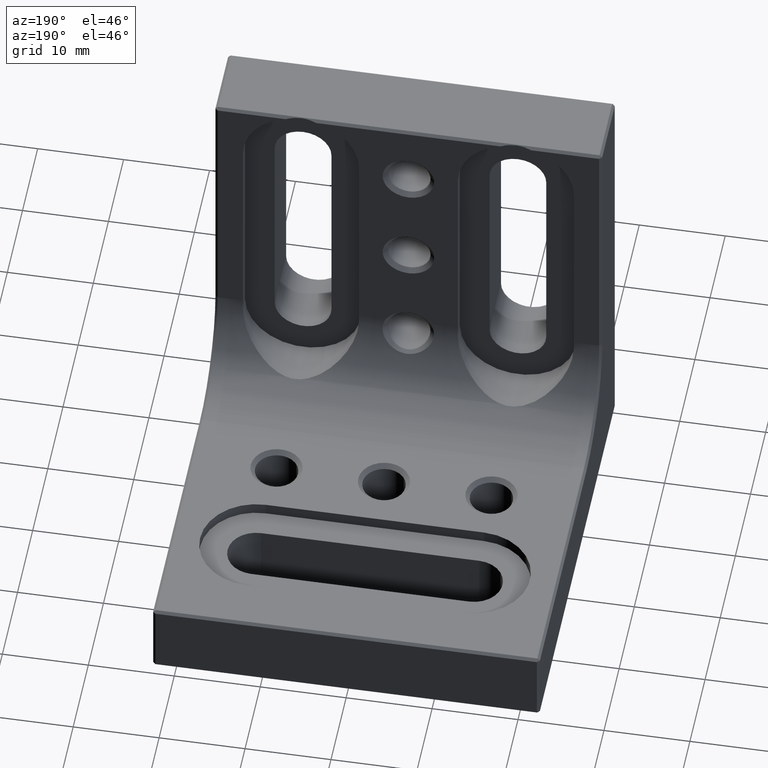
[diagram: clean part render]
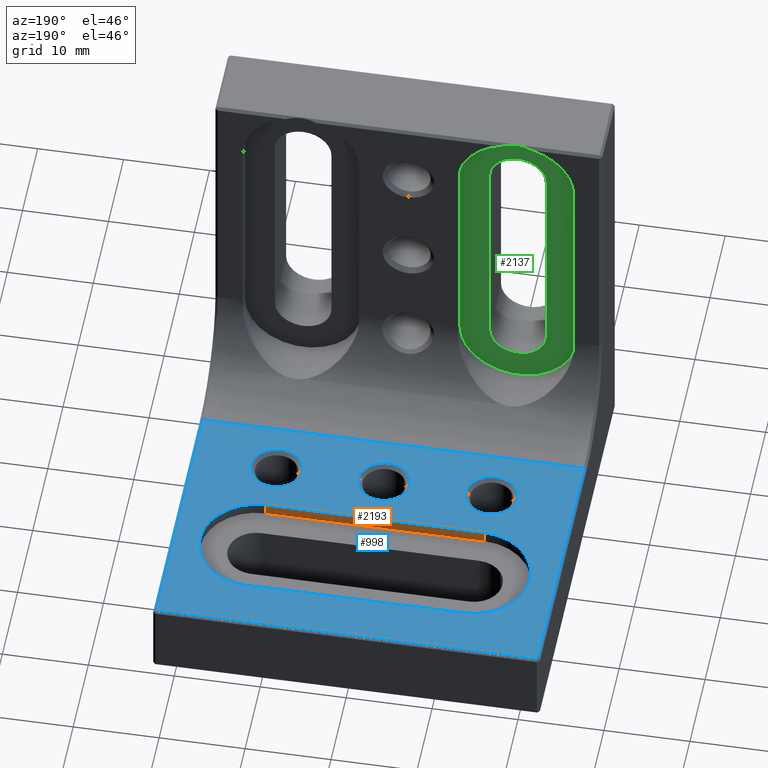
[diagram: same view with three faces highlighted in distinct colors, each labeled with its STEP entity id]
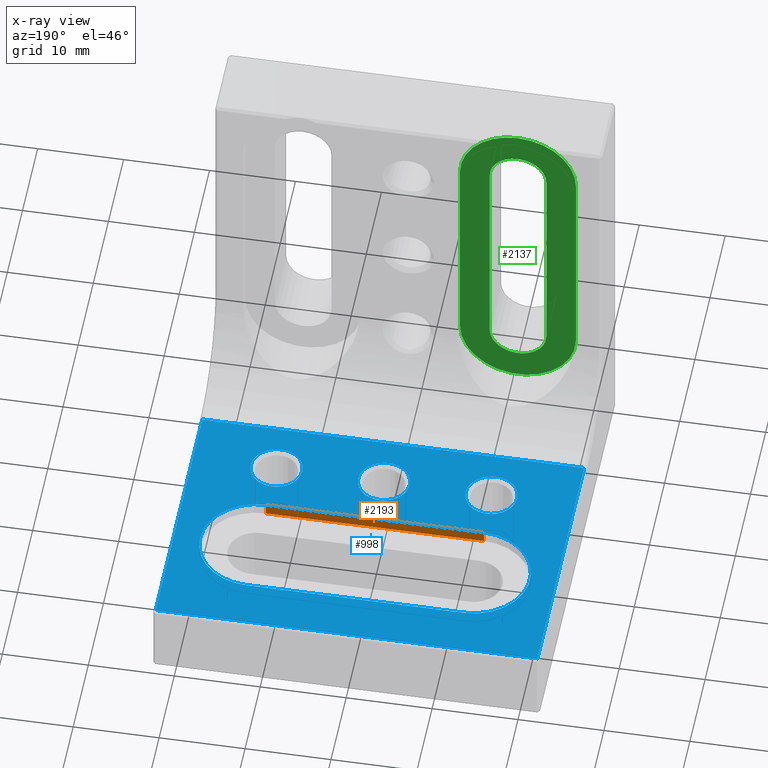
[diagram: x-ray of the same camera — body ghosted, the three highlighted faces saturated]
A machine part, auxiliary view with three faces highlighted in distinct colors.
The next image is the same camera in x-ray (body ghosted, the three faces saturated) — at least one of them is partly hidden behind the body in this view.
Their STEP definitions:

[orange] entity #2193 — the highlighted planar face has unit normal (0, -1, -0).
#152 = AXIS2_PLACEMENT_3D ( 'NONE', #727, #1599, #2750 ) ;
#189 = CARTESIAN_POINT ( 'NONE',  ( -12.69999999999999929, 31.00000000000000000, 8.899999999999998579 ) ) ;
#272 = EDGE_CURVE ( 'NONE', #2906, #562, #1121, .T. ) ;
#562 = VERTEX_POINT ( 'NONE', #3362 ) ;
#656 = ORIENTED_EDGE ( 'NONE', *, *, #2744, .T. ) ;
#680 = CARTESIAN_POINT ( 'NONE',  ( -12.69999999999999929, 31.00000000000000000, 50.00000000000000000 ) ) ;
#694 = VERTEX_POINT ( 'NONE', #3723 ) ;
#727 = CARTESIAN_POINT ( 'NONE',  ( -12.69999999999999929, 31.00000000000000000, 50.00000000000000000 ) ) ;
#734 = CARTESIAN_POINT ( 'NONE',  ( 22.50000000000000000, 31.00000000000000000, 8.899999999999998579 ) ) ;
#970 = LINE ( 'NONE', #680, #3047 ) ;
#1121 = LINE ( 'NONE', #2306, #2235 ) ;
#1149 = VERTEX_POINT ( 'NONE', #189 ) ;
#1573 = PLANE ( 'NONE',  #152 ) ;
#1582 = DIRECTION ( 'NONE',  ( -1.000000000000000000, 0.000000000000000000, 0.000000000000000000 ) ) ;
#1599 = DIRECTION ( 'NONE',  ( 0.000000000000000000, -1.000000000000000000, -0.000000000000000000 ) ) ;
#1870 = CARTESIAN_POINT ( 'NONE',  ( 12.69999999999999929, 31.00000000000000000, 50.00000000000000000 ) ) ;
#2110 = EDGE_LOOP ( 'NONE', ( #656, #3468, #2727, #3822 ) ) ;
#2193 = ADVANCED_FACE ( 'NONE', ( #3665 ), #1573, .F. ) ;
#2235 = VECTOR ( 'NONE', #2540, 1000.000000000000000 ) ;
#2306 = CARTESIAN_POINT ( 'NONE',  ( -12.69999999999999929, 31.00000000000000000, 7.500000000000000000 ) ) ;
#2450 = VECTOR ( 'NONE', #1582, 1000.000000000000000 ) ;
#2484 = LINE ( 'NONE', #1870, #3418 ) ;
#2540 = DIRECTION ( 'NONE',  ( 1.000000000000000000, -0.000000000000000000, -0.000000000000000000 ) ) ;
#2720 = LINE ( 'NONE', #734, #2450 ) ;
#2727 = ORIENTED_EDGE ( 'NONE', *, *, #2765, .T. ) ;
#2744 = EDGE_CURVE ( 'NONE', #694, #562, #2484, .T. ) ;
#2750 = DIRECTION ( 'NONE',  ( 0.000000000000000000, 0.000000000000000000, -1.000000000000000000 ) ) ;
#2765 = EDGE_CURVE ( 'NONE', #2906, #1149, #970, .T. ) ;
#2906 = VERTEX_POINT ( 'NONE', #3260 ) ;
#3047 = VECTOR ( 'NONE', #3346, 1000.000000000000000 ) ;
#3260 = CARTESIAN_POINT ( 'NONE',  ( -12.69999999999999929, 31.00000000000000000, 7.500000000000000000 ) ) ;
#3346 = DIRECTION ( 'NONE',  ( -0.000000000000000000, -0.000000000000000000, 1.000000000000000000 ) ) ;
#3362 = CARTESIAN_POINT ( 'NONE',  ( 12.69999999999999929, 31.00000000000000000, 7.500000000000000000 ) ) ;
#3418 = VECTOR ( 'NONE', #3621, 1000.000000000000000 ) ;
#3468 = ORIENTED_EDGE ( 'NONE', *, *, #272, .F. ) ;
#3621 = DIRECTION ( 'NONE',  ( 0.000000000000000000, 0.000000000000000000, -1.000000000000000000 ) ) ;
#3665 = FACE_OUTER_BOUND ( 'NONE', #2110, .T. ) ;
#3720 = EDGE_CURVE ( 'NONE', #694, #1149, #2720, .T. ) ;
#3723 = CARTESIAN_POINT ( 'NONE',  ( 12.69999999999999929, 31.00000000000000000, 8.899999999999998579 ) ) ;
#3822 = ORIENTED_EDGE ( 'NONE', *, *, #3720, .F. ) ;

[blue] entity #998 — the highlighted planar face has unit normal (0, 0, -1).
#59 = DIRECTION ( 'NONE',  ( 0.000000000000000000, 1.266221515311538050E-16, -1.000000000000000000 ) ) ;
#80 = FACE_OUTER_BOUND ( 'NONE', #2706, .T. ) ;
#84 = DIRECTION ( 'NONE',  ( 0.000000000000000000, 1.266221515311538050E-16, -1.000000000000000000 ) ) ;
#88 = CARTESIAN_POINT ( 'NONE',  ( 22.50000000000000000, 49.70000000000000995, 8.900000000000000355 ) ) ;
#120 = CARTESIAN_POINT ( 'NONE',  ( 12.50000000000000000, 24.99999999999999289, 8.899999999999996803 ) ) ;
#144 = CARTESIAN_POINT ( 'NONE',  ( -12.50000000000000000, 24.99999999999999289, 8.899999999999996803 ) ) ;
#189 = CARTESIAN_POINT ( 'NONE',  ( -12.69999999999999929, 31.00000000000000000, 8.899999999999998579 ) ) ;
#201 = CARTESIAN_POINT ( 'NONE',  ( -12.69999999999999929, 43.99999999999998579, 8.899999999999998579 ) ) ;
#215 = CIRCLE ( 'NONE', #2433, 6.499999999999992006 ) ;
#248 = VERTEX_POINT ( 'NONE', #538 ) ;
#251 = CARTESIAN_POINT ( 'NONE',  ( 22.50000000000000000, 18.89999999999999503, 8.900000000000000355 ) ) ;
#261 = AXIS2_PLACEMENT_3D ( 'NONE', #2290, #1414, #1975 ) ;
#286 = ORIENTED_EDGE ( 'NONE', *, *, #3720, .T. ) ;
#287 = ORIENTED_EDGE ( 'NONE', *, *, #3790, .T. ) ;
#302 = EDGE_CURVE ( 'NONE', #2902, #1813, #2045, .T. ) ;
#325 = ORIENTED_EDGE ( 'NONE', *, *, #2403, .T. ) ;
#331 = CARTESIAN_POINT ( 'NONE',  ( -22.20000000000000284, 50.00000000000000000, 8.900000000000000355 ) ) ;
#336 = LINE ( 'NONE', #3636, #484 ) ;
#346 = CARTESIAN_POINT ( 'NONE',  ( 22.50000000000000000, 50.00000000000000000, 8.900000000000000355 ) ) ;
#348 = EDGE_CURVE ( 'NONE', #1813, #2902, #2918, .T. ) ;
#364 = ORIENTED_EDGE ( 'NONE', *, *, #2921, .T. ) ;
#392 = CARTESIAN_POINT ( 'NONE',  ( 12.69999999999999929, 43.99999999999998579, 8.900000000000000355 ) ) ;
#394 = CARTESIAN_POINT ( 'NONE',  ( -12.50000000000000000, 24.99999999999999289, 8.899999999999996803 ) ) ;
#406 = CARTESIAN_POINT ( 'NONE',  ( -9.499999999999987566, 24.99999999999999289, 8.899999999999996803 ) ) ;
#484 = VECTOR ( 'NONE', #714, 1000.000000000000000 ) ;
#538 = CARTESIAN_POINT ( 'NONE',  ( -15.50000000000001421, 24.99999999999999289, 8.899999999999996803 ) ) ;
#549 = EDGE_CURVE ( 'NONE', #1626, #248, #3094, .T. ) ;
#611 = CARTESIAN_POINT ( 'NONE',  ( -2.999999999999995559, 24.99999999999999289, 8.899999999999996803 ) ) ;
#623 = EDGE_CURVE ( 'NONE', #3128, #1727, #1191, .T. ) ;
#638 = AXIS2_PLACEMENT_3D ( 'NONE', #3465, #2619, #1195 ) ;
#670 = EDGE_CURVE ( 'NONE', #2842, #1824, #1659, .T. ) ;
#694 = VERTEX_POINT ( 'NONE', #3723 ) ;
#714 = DIRECTION ( 'NONE',  ( 0.000000000000000000, 1.000000000000000000, 1.266221515311538050E-16 ) ) ;
#734 = CARTESIAN_POINT ( 'NONE',  ( 22.50000000000000000, 31.00000000000000000, 8.899999999999998579 ) ) ;
#752 = CARTESIAN_POINT ( 'NONE',  ( 22.20000000000000284, 18.89999999999999503, 8.900000000000000355 ) ) ;
#781 = AXIS2_PLACEMENT_3D ( 'NONE', #1207, #2337, #873 ) ;
#873 = DIRECTION ( 'NONE',  ( 0.000000000000000000, 1.000000000000000000, 0.000000000000000000 ) ) ;
#899 = CARTESIAN_POINT ( 'NONE',  ( 22.20000000000000284, 49.70000000000000995, 8.900000000000000355 ) ) ;
#909 = VECTOR ( 'NONE', #924, 1000.000000000000000 ) ;
#924 = DIRECTION ( 'NONE',  ( 0.000000000000000000, -1.000000000000000000, -1.266221515311538050E-16 ) ) ;
#949 = DIRECTION ( 'NONE',  ( -1.000000000000000000, 0.000000000000000000, 0.000000000000000000 ) ) ;
#958 = DIRECTION ( 'NONE',  ( 0.000000000000000000, 1.000000000000000000, 1.266221515311538050E-16 ) ) ;
#961 = ORIENTED_EDGE ( 'NONE', *, *, #623, .T. ) ;
#998 = ADVANCED_FACE ( 'NONE', ( #2728, #1535, #2748, #3663, #80 ), #1898, .F. ) ;
#1044 = DIRECTION ( 'NONE',  ( 0.000000000000000000, 1.000000000000000000, 0.000000000000000000 ) ) ;
#1081 = CARTESIAN_POINT ( 'NONE',  ( 12.50000000000000000, 24.99999999999999289, 8.899999999999996803 ) ) ;
#1099 = AXIS2_PLACEMENT_3D ( 'NONE', #144, #1341, #2213 ) ;
#1149 = VERTEX_POINT ( 'NONE', #189 ) ;
#1191 = CIRCLE ( 'NONE', #3702, 3.000000000000012879 ) ;
#1195 = DIRECTION ( 'NONE',  ( 0.000000000000000000, 1.000000000000000000, 0.000000000000000000 ) ) ;
#1203 = EDGE_LOOP ( 'NONE', ( #1786, #1530 ) ) ;
#1207 = CARTESIAN_POINT ( 'NONE',  ( 12.69999999999999929, 37.49999999999999289, 8.899999999999998579 ) ) ;
#1213 = DIRECTION ( 'NONE',  ( 0.000000000000000000, 1.266221515311538050E-16, -1.000000000000000000 ) ) ;
#1239 = ORIENTED_EDGE ( 'NONE', *, *, #670, .T. ) ;
#1272 = DIRECTION ( 'NONE',  ( 0.000000000000000000, 1.266221515311538050E-16, -1.000000000000000000 ) ) ;
#1341 = DIRECTION ( 'NONE',  ( 0.000000000000000000, 1.266221515311538050E-16, -1.000000000000000000 ) ) ;
#1414 = DIRECTION ( 'NONE',  ( 0.000000000000000000, 1.266221515311538050E-16, -1.000000000000000000 ) ) ;
#1446 = CARTESIAN_POINT ( 'NONE',  ( 19.19999999999999574, 37.49999999999999289, 8.899999999999998579 ) ) ;
#1484 = CARTESIAN_POINT ( 'NONE',  ( 22.50000000000000000, 43.99999999999998579, 8.900000000000000355 ) ) ;
#1524 = DIRECTION ( 'NONE',  ( 0.000000000000000000, 1.000000000000000000, 0.000000000000000000 ) ) ;
#1530 = ORIENTED_EDGE ( 'NONE', *, *, #3021, .T. ) ;
#1535 = FACE_BOUND ( 'NONE', #3812, .T. ) ;
#1571 = VERTEX_POINT ( 'NONE', #1854 ) ;
#1582 = DIRECTION ( 'NONE',  ( -1.000000000000000000, 0.000000000000000000, 0.000000000000000000 ) ) ;
#1597 = AXIS2_PLACEMENT_3D ( 'NONE', #3342, #84, #1524 ) ;
#1626 = VERTEX_POINT ( 'NONE', #406 ) ;
#1659 = LINE ( 'NONE', #251, #1924 ) ;
#1685 = CARTESIAN_POINT ( 'NONE',  ( 2.999999999999995559, 24.99999999999999289, 8.899999999999996803 ) ) ;
#1727 = VERTEX_POINT ( 'NONE', #2196 ) ;
#1786 = ORIENTED_EDGE ( 'NONE', *, *, #549, .T. ) ;
#1800 = ORIENTED_EDGE ( 'NONE', *, *, #3765, .T. ) ;
#1805 = AXIS2_PLACEMENT_3D ( 'NONE', #346, #59, #958 ) ;
#1813 = VERTEX_POINT ( 'NONE', #1685 ) ;
#1824 = VERTEX_POINT ( 'NONE', #752 ) ;
#1847 = VERTEX_POINT ( 'NONE', #899 ) ;
#1854 = CARTESIAN_POINT ( 'NONE',  ( -22.20000000000000284, 49.70000000000000995, 8.900000000000000355 ) ) ;
#1874 = ORIENTED_EDGE ( 'NONE', *, *, #2000, .T. ) ;
#1898 = PLANE ( 'NONE',  #1805 ) ;
#1924 = VECTOR ( 'NONE', #3404, 1000.000000000000000 ) ;
#1927 = ORIENTED_EDGE ( 'NONE', *, *, #302, .T. ) ;
#1975 = DIRECTION ( 'NONE',  ( 0.000000000000000000, 1.000000000000000000, 0.000000000000000000 ) ) ;
#1980 = AXIS2_PLACEMENT_3D ( 'NONE', #394, #1272, #2476 ) ;
#1984 = VERTEX_POINT ( 'NONE', #1446 ) ;
#2000 = EDGE_CURVE ( 'NONE', #1727, #3128, #3782, .T. ) ;
#2001 = CIRCLE ( 'NONE', #781, 6.499999999999992006 ) ;
#2045 = CIRCLE ( 'NONE', #261, 2.999999999999995559 ) ;
#2067 = EDGE_CURVE ( 'NONE', #1149, #2825, #215, .T. ) ;
#2174 = VERTEX_POINT ( 'NONE', #392 ) ;
#2196 = CARTESIAN_POINT ( 'NONE',  ( 15.50000000000001421, 24.99999999999999289, 8.899999999999996803 ) ) ;
#2213 = DIRECTION ( 'NONE',  ( 0.000000000000000000, 1.000000000000000000, 0.000000000000000000 ) ) ;
#2265 = ORIENTED_EDGE ( 'NONE', *, *, #348, .T. ) ;
#2287 = DIRECTION ( 'NONE',  ( 0.000000000000000000, 1.266221515311538050E-16, -1.000000000000000000 ) ) ;
#2290 = CARTESIAN_POINT ( 'NONE',  ( 0.000000000000000000, 24.99999999999999289, 8.899999999999996803 ) ) ;
#2307 = CARTESIAN_POINT ( 'NONE',  ( -22.20000000000000284, 18.89999999999999503, 8.900000000000000355 ) ) ;
#2337 = DIRECTION ( 'NONE',  ( 0.000000000000000000, 1.266221515311538050E-16, -1.000000000000000000 ) ) ;
#2358 = DIRECTION ( 'NONE',  ( 0.000000000000000000, 1.000000000000000000, 0.000000000000000000 ) ) ;
#2383 = LINE ( 'NONE', #1484, #3234 ) ;
#2385 = ORIENTED_EDGE ( 'NONE', *, *, #3446, .T. ) ;
#2403 = EDGE_CURVE ( 'NONE', #1984, #694, #2001, .T. ) ;
#2422 = LINE ( 'NONE', #88, #3495 ) ;
#2433 = AXIS2_PLACEMENT_3D ( 'NONE', #2669, #1213, #2358 ) ;
#2450 = VECTOR ( 'NONE', #1582, 1000.000000000000000 ) ;
#2476 = DIRECTION ( 'NONE',  ( 0.000000000000000000, 1.000000000000000000, 0.000000000000000000 ) ) ;
#2535 = ORIENTED_EDGE ( 'NONE', *, *, #2067, .T. ) ;
#2619 = DIRECTION ( 'NONE',  ( 0.000000000000000000, 1.266221515311538050E-16, -1.000000000000000000 ) ) ;
#2630 = CIRCLE ( 'NONE', #1099, 3.000000000000012879 ) ;
#2651 = EDGE_LOOP ( 'NONE', ( #1874, #961 ) ) ;
#2669 = CARTESIAN_POINT ( 'NONE',  ( -12.69999999999999929, 37.49999999999999289, 8.899999999999998579 ) ) ;
#2700 = CIRCLE ( 'NONE', #1597, 6.499999999999992006 ) ;
#2706 = EDGE_LOOP ( 'NONE', ( #287, #2757, #1239, #1800 ) ) ;
#2720 = LINE ( 'NONE', #734, #2450 ) ;
#2728 = FACE_BOUND ( 'NONE', #2651, .T. ) ;
#2748 = FACE_BOUND ( 'NONE', #1203, .T. ) ;
#2757 = ORIENTED_EDGE ( 'NONE', *, *, #2908, .T. ) ;
#2825 = VERTEX_POINT ( 'NONE', #201 ) ;
#2842 = VERTEX_POINT ( 'NONE', #2307 ) ;
#2902 = VERTEX_POINT ( 'NONE', #611 ) ;
#2908 = EDGE_CURVE ( 'NONE', #1571, #2842, #2979, .T. ) ;
#2918 = CIRCLE ( 'NONE', #638, 2.999999999999995559 ) ;
#2921 = EDGE_CURVE ( 'NONE', #2825, #2174, #2383, .T. ) ;
#2979 = LINE ( 'NONE', #331, #909 ) ;
#3021 = EDGE_CURVE ( 'NONE', #248, #1626, #2630, .T. ) ;
#3094 = CIRCLE ( 'NONE', #1980, 3.000000000000012879 ) ;
#3128 = VERTEX_POINT ( 'NONE', #3419 ) ;
#3134 = DIRECTION ( 'NONE',  ( 0.000000000000000000, 1.000000000000000000, 0.000000000000000000 ) ) ;
#3234 = VECTOR ( 'NONE', #3789, 1000.000000000000000 ) ;
#3342 = CARTESIAN_POINT ( 'NONE',  ( 12.69999999999999929, 37.49999999999999289, 8.899999999999998579 ) ) ;
#3404 = DIRECTION ( 'NONE',  ( 1.000000000000000000, -0.000000000000000000, -0.000000000000000000 ) ) ;
#3419 = CARTESIAN_POINT ( 'NONE',  ( 9.499999999999987566, 24.99999999999999289, 8.899999999999996803 ) ) ;
#3446 = EDGE_CURVE ( 'NONE', #2174, #1984, #2700, .T. ) ;
#3465 = CARTESIAN_POINT ( 'NONE',  ( 0.000000000000000000, 24.99999999999999289, 8.899999999999996803 ) ) ;
#3495 = VECTOR ( 'NONE', #949, 1000.000000000000000 ) ;
#3541 = AXIS2_PLACEMENT_3D ( 'NONE', #1081, #2287, #3134 ) ;
#3636 = CARTESIAN_POINT ( 'NONE',  ( 22.20000000000000284, 50.00000000000000000, 8.900000000000000355 ) ) ;
#3663 = FACE_BOUND ( 'NONE', #3795, .T. ) ;
#3668 = DIRECTION ( 'NONE',  ( 0.000000000000000000, 1.266221515311538050E-16, -1.000000000000000000 ) ) ;
#3702 = AXIS2_PLACEMENT_3D ( 'NONE', #120, #3668, #1044 ) ;
#3720 = EDGE_CURVE ( 'NONE', #694, #1149, #2720, .T. ) ;
#3723 = CARTESIAN_POINT ( 'NONE',  ( 12.69999999999999929, 31.00000000000000000, 8.899999999999998579 ) ) ;
#3765 = EDGE_CURVE ( 'NONE', #1824, #1847, #336, .T. ) ;
#3782 = CIRCLE ( 'NONE', #3541, 3.000000000000012879 ) ;
#3789 = DIRECTION ( 'NONE',  ( 1.000000000000000000, -0.000000000000000000, 0.000000000000000000 ) ) ;
#3790 = EDGE_CURVE ( 'NONE', #1847, #1571, #2422, .T. ) ;
#3795 = EDGE_LOOP ( 'NONE', ( #286, #2535, #364, #2385, #325 ) ) ;
#3812 = EDGE_LOOP ( 'NONE', ( #2265, #1927 ) ) ;

[green] entity #2137 — the highlighted planar face has unit normal (-0, 1, 0).
#4 = DIRECTION ( 'NONE',  ( 0.000000000000000000, -1.000000000000000000, -1.224646799147353454E-16 ) ) ;
#43 = EDGE_CURVE ( 'NONE', #3661, #3434, #833, .T. ) ;
#67 = EDGE_CURVE ( 'NONE', #3598, #644, #398, .T. ) ;
#163 = DIRECTION ( 'NONE',  ( 0.000000000000000000, 1.224646799147353454E-16, -1.000000000000000000 ) ) ;
#177 = DIRECTION ( 'NONE',  ( 0.000000000000000000, -1.000000000000000000, -1.224646799147353454E-16 ) ) ;
#208 = VERTEX_POINT ( 'NONE', #481 ) ;
#301 = ORIENTED_EDGE ( 'NONE', *, *, #67, .F. ) ;
#330 = AXIS2_PLACEMENT_3D ( 'NONE', #689, #1879, #3336 ) ;
#398 = LINE ( 'NONE', #3059, #1808 ) ;
#410 = CIRCLE ( 'NONE', #659, 3.300000000000000711 ) ;
#469 = VERTEX_POINT ( 'NONE', #2958 ) ;
#472 = CARTESIAN_POINT ( 'NONE',  ( -12.49999999999999645, 7.500000000000000000, 17.78999999999999915 ) ) ;
#480 = EDGE_CURVE ( 'NONE', #1589, #208, #2978, .T. ) ;
#481 = CARTESIAN_POINT ( 'NONE',  ( -15.79999999999999893, 7.499999999999996447, 17.78999999999999915 ) ) ;
#501 = ORIENTED_EDGE ( 'NONE', *, *, #480, .T. ) ;
#564 = LINE ( 'NONE', #1763, #3610 ) ;
#621 = ORIENTED_EDGE ( 'NONE', *, *, #3180, .T. ) ;
#625 = ORIENTED_EDGE ( 'NONE', *, *, #1431, .F. ) ;
#644 = VERTEX_POINT ( 'NONE', #2890 ) ;
#659 = AXIS2_PLACEMENT_3D ( 'NONE', #2802, #1350, #1383 ) ;
#689 = CARTESIAN_POINT ( 'NONE',  ( 22.50000000000000000, 7.499999999999999112, 9.184850993605147944E-16 ) ) ;
#808 = CARTESIAN_POINT ( 'NONE',  ( -12.49999999999999645, 7.499999999999992895, 43.18999999999999773 ) ) ;
#833 = LINE ( 'NONE', #1006, #2792 ) ;
#883 = CARTESIAN_POINT ( 'NONE',  ( -12.49999999999999645, 7.499999999999992006, 49.93999999999999773 ) ) ;
#888 = CARTESIAN_POINT ( 'NONE',  ( -19.24999999999999645, 7.499999999999985789, 43.18999999999999773 ) ) ;
#940 = DIRECTION ( 'NONE',  ( 0.000000000000000000, -1.284980352575412946E-16, 1.000000000000000000 ) ) ;
#955 = CARTESIAN_POINT ( 'NONE',  ( -15.80000000000000071, 7.499999999999994671, 43.19000000000000483 ) ) ;
#974 = VERTEX_POINT ( 'NONE', #3074 ) ;
#1006 = CARTESIAN_POINT ( 'NONE',  ( -9.199999999999995737, 7.499999999999996447, 17.78999999999999915 ) ) ;
#1095 = DIRECTION ( 'NONE',  ( 0.000000000000000000, -1.284980352575412946E-16, 1.000000000000000000 ) ) ;
#1185 = EDGE_CURVE ( 'NONE', #644, #3758, #1825, .T. ) ;
#1238 = EDGE_CURVE ( 'NONE', #208, #3661, #410, .T. ) ;
#1350 = DIRECTION ( 'NONE',  ( 0.000000000000000000, -1.000000000000000000, -1.224646799147353454E-16 ) ) ;
#1383 = DIRECTION ( 'NONE',  ( 0.000000000000000000, 0.000000000000000000, 1.000000000000000000 ) ) ;
#1431 = EDGE_CURVE ( 'NONE', #3758, #469, #564, .T. ) ;
#1453 = CARTESIAN_POINT ( 'NONE',  ( -12.49999999999999645, 7.499999999999993783, 43.18999999999999773 ) ) ;
#1522 = CARTESIAN_POINT ( 'NONE',  ( -15.79999999999999893, 7.499999999999996447, 17.78999999999999915 ) ) ;
#1525 = DIRECTION ( 'NONE',  ( 0.000000000000000000, 0.000000000000000000, 1.000000000000000000 ) ) ;
#1589 = VERTEX_POINT ( 'NONE', #955 ) ;
#1763 = CARTESIAN_POINT ( 'NONE',  ( -5.749999999999998224, 7.500000000000000000, 17.79000000000000625 ) ) ;
#1808 = VECTOR ( 'NONE', #163, 1000.000000000000000 ) ;
#1825 = CIRCLE ( 'NONE', #2877, 6.749999999999999112 ) ;
#1879 = DIRECTION ( 'NONE',  ( -0.000000000000000000, 1.000000000000000000, 1.224646799147353454E-16 ) ) ;
#1908 = ORIENTED_EDGE ( 'NONE', *, *, #2049, .F. ) ;
#1942 = CIRCLE ( 'NONE', #2116, 6.749999999999999112 ) ;
#1998 = AXIS2_PLACEMENT_3D ( 'NONE', #2639, #4, #1525 ) ;
#2021 = EDGE_CURVE ( 'NONE', #469, #2927, #1942, .T. ) ;
#2046 = CARTESIAN_POINT ( 'NONE',  ( -12.49999999999999645, 7.499999999999992895, 43.18999999999999773 ) ) ;
#2049 = EDGE_CURVE ( 'NONE', #2927, #3598, #2679, .T. ) ;
#2054 = CARTESIAN_POINT ( 'NONE',  ( -9.199999999999995737, 7.499999999999996447, 17.78999999999999915 ) ) ;
#2081 = DIRECTION ( 'NONE',  ( 0.000000000000000000, -1.000000000000000000, -1.224646799147353454E-16 ) ) ;
#2116 = AXIS2_PLACEMENT_3D ( 'NONE', #808, #177, #3746 ) ;
#2137 = ADVANCED_FACE ( 'NONE', ( #2181, #2491 ), #3032, .T. ) ;
#2169 = DIRECTION ( 'NONE',  ( 4.097771990496395321E-16, -1.224646799147353454E-16, 1.000000000000000000 ) ) ;
#2181 = FACE_OUTER_BOUND ( 'NONE', #2564, .T. ) ;
#2332 = DIRECTION ( 'NONE',  ( 0.000000000000000000, -1.000000000000000000, -1.224646799147353454E-16 ) ) ;
#2432 = ORIENTED_EDGE ( 'NONE', *, *, #43, .T. ) ;
#2491 = FACE_BOUND ( 'NONE', #2714, .T. ) ;
#2493 = CIRCLE ( 'NONE', #1998, 3.300000000000004263 ) ;
#2564 = EDGE_LOOP ( 'NONE', ( #2688, #301, #1908, #3203, #625 ) ) ;
#2639 = CARTESIAN_POINT ( 'NONE',  ( -12.49999999999999645, 7.499999999999993783, 43.18999999999999773 ) ) ;
#2658 = DIRECTION ( 'NONE',  ( 0.000000000000000000, 0.000000000000000000, 1.000000000000000000 ) ) ;
#2679 = CIRCLE ( 'NONE', #3351, 6.749999999999999112 ) ;
#2688 = ORIENTED_EDGE ( 'NONE', *, *, #1185, .F. ) ;
#2695 = DIRECTION ( 'NONE',  ( -1.365923996832131116E-16, 1.224646799147353454E-16, -1.000000000000000000 ) ) ;
#2714 = EDGE_LOOP ( 'NONE', ( #2432, #3339, #621, #501, #2723 ) ) ;
#2723 = ORIENTED_EDGE ( 'NONE', *, *, #1238, .T. ) ;
#2792 = VECTOR ( 'NONE', #2169, 1000.000000000000000 ) ;
#2802 = CARTESIAN_POINT ( 'NONE',  ( -12.49999999999999645, 7.499999999999996447, 17.78999999999999915 ) ) ;
#2877 = AXIS2_PLACEMENT_3D ( 'NONE', #472, #3718, #1095 ) ;
#2890 = CARTESIAN_POINT ( 'NONE',  ( -19.24999999999999645, 7.500000000000000000, 17.78999999999999915 ) ) ;
#2927 = VERTEX_POINT ( 'NONE', #883 ) ;
#2958 = CARTESIAN_POINT ( 'NONE',  ( -5.749999999999998224, 7.499999999999992895, 43.18999999999999773 ) ) ;
#2968 = DIRECTION ( 'NONE',  ( 0.000000000000000000, -1.224646799147353454E-16, 1.000000000000000000 ) ) ;
#2978 = LINE ( 'NONE', #1522, #3151 ) ;
#3032 = PLANE ( 'NONE',  #330 ) ;
#3059 = CARTESIAN_POINT ( 'NONE',  ( -19.24999999999999645, 7.500000000000000000, 17.79000000000000625 ) ) ;
#3074 = CARTESIAN_POINT ( 'NONE',  ( -12.49999999999999645, 7.499999999999993783, 46.49000000000000199 ) ) ;
#3151 = VECTOR ( 'NONE', #2695, 1000.000000000000000 ) ;
#3180 = EDGE_CURVE ( 'NONE', #974, #1589, #2493, .T. ) ;
#3203 = ORIENTED_EDGE ( 'NONE', *, *, #2021, .F. ) ;
#3239 = CIRCLE ( 'NONE', #3305, 3.300000000000004263 ) ;
#3305 = AXIS2_PLACEMENT_3D ( 'NONE', #1453, #2332, #2658 ) ;
#3308 = CARTESIAN_POINT ( 'NONE',  ( -5.749999999999998224, 7.500000000000000000, 17.78999999999999915 ) ) ;
#3336 = DIRECTION ( 'NONE',  ( 0.000000000000000000, -1.224646799147353454E-16, 1.000000000000000000 ) ) ;
#3339 = ORIENTED_EDGE ( 'NONE', *, *, #3577, .T. ) ;
#3351 = AXIS2_PLACEMENT_3D ( 'NONE', #2046, #2081, #940 ) ;
#3434 = VERTEX_POINT ( 'NONE', #3597 ) ;
#3577 = EDGE_CURVE ( 'NONE', #3434, #974, #3239, .T. ) ;
#3597 = CARTESIAN_POINT ( 'NONE',  ( -9.199999999999992184, 7.499999999999993783, 43.18999999999999773 ) ) ;
#3598 = VERTEX_POINT ( 'NONE', #888 ) ;
#3610 = VECTOR ( 'NONE', #2968, 1000.000000000000000 ) ;
#3661 = VERTEX_POINT ( 'NONE', #2054 ) ;
#3718 = DIRECTION ( 'NONE',  ( 0.000000000000000000, -1.000000000000000000, -1.224646799147353454E-16 ) ) ;
#3746 = DIRECTION ( 'NONE',  ( 0.000000000000000000, -1.284980352575412946E-16, 1.000000000000000000 ) ) ;
#3758 = VERTEX_POINT ( 'NONE', #3308 ) ;